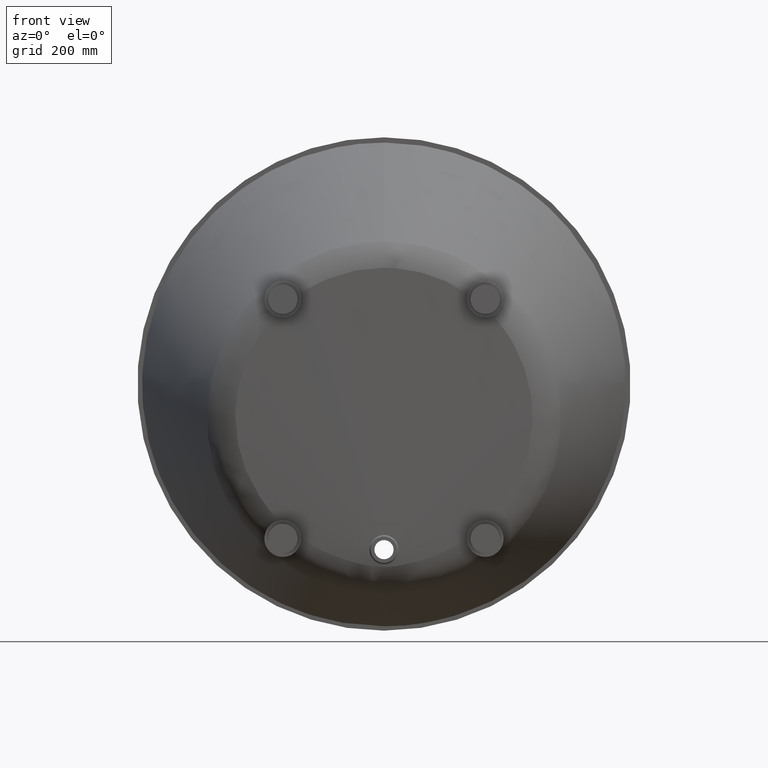
[diagram: clean part render]
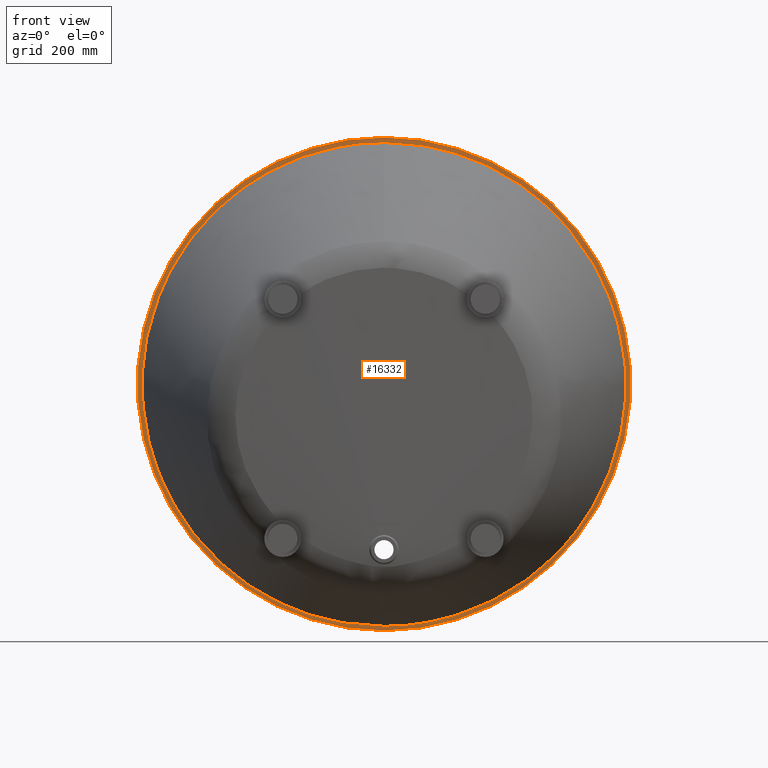
[diagram: same view with one face highlighted and labeled with its STEP entity id]
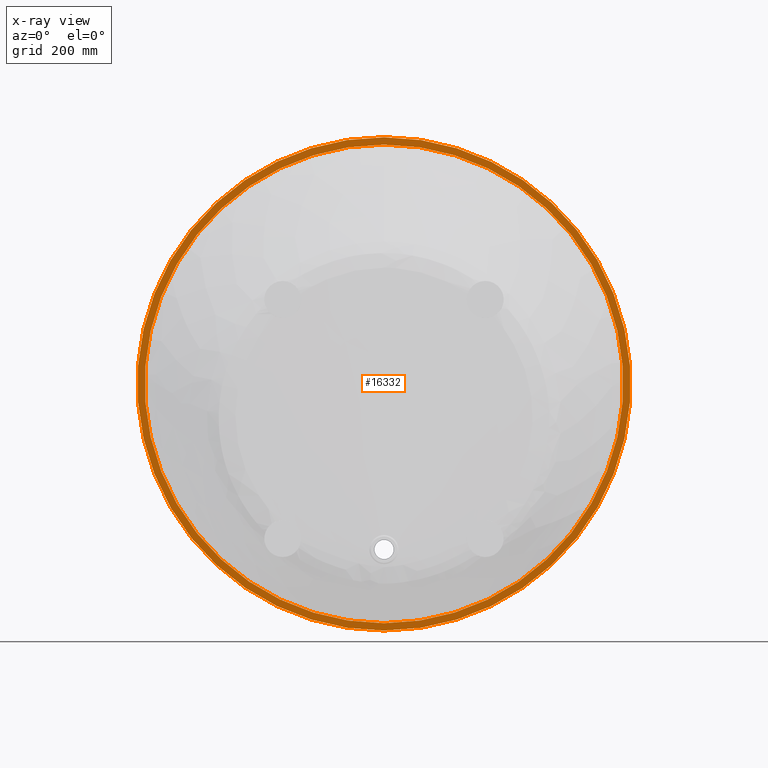
[diagram: x-ray of the same camera — body ghosted, the highlighted face saturated]
A machine part, front view. The second image highlights one B-rep face of the part: STEP entity #16332.
The next image is the same camera in x-ray: the body ghosted, the highlighted face saturated — about 0% of this face is hidden behind the body in this view.
In plain terms, the highlighted planar face has unit normal (0, 1, 0).
Its self-contained STEP definition (entity closure, byte-faithful):
#15 = DIRECTION ( 'NONE',  ( 0.0000000000000000000, 0.0000000000000000000, 1.000000000000000000 ) ) ;
#113 = DIRECTION ( 'NONE',  ( 0.0000000000000000000, -0.0000000000000000000, 1.000000000000000000 ) ) ;
#123 = CIRCLE ( 'NONE', #8256, 670.0000000000000000 ) ;
#745 = ORIENTED_EDGE ( 'NONE', *, *, #6682, .F. ) ;
#1046 = ORIENTED_EDGE ( 'NONE', *, *, #16213, .T. ) ;
#1057 = CIRCLE ( 'NONE', #5871, 670.0000000000000000 ) ;
#1396 = ORIENTED_EDGE ( 'NONE', *, *, #17487, .F. ) ;
#1532 = PLANE ( 'NONE',  #10375 ) ;
#2349 = CARTESIAN_POINT ( 'NONE',  ( 0.0000000000000000000, -10.00000000000000000, 0.0000000000000000000 ) ) ;
#2361 = VERTEX_POINT ( 'NONE', #15265 ) ;
#2876 = DIRECTION ( 'NONE',  ( 0.0000000000000000000, 0.0000000000000000000, 1.000000000000000000 ) ) ;
#5871 = AXIS2_PLACEMENT_3D ( 'NONE', #10045, #15781, #2876 ) ;
#6682 = EDGE_CURVE ( 'NONE', #18441, #8557, #1057, .T. ) ;
#6997 = CARTESIAN_POINT ( 'NONE',  ( 0.0000000000000000000, -10.00000000000000000, 0.0000000000000000000 ) ) ;
#7185 = CARTESIAN_POINT ( 'NONE',  ( 0.0000000000000000000, -10.00000000000000000, 0.0000000000000000000 ) ) ;
#7282 = CARTESIAN_POINT ( 'NONE',  ( 0.0000000000000000000, -10.00000000000000000, 0.0000000000000000000 ) ) ;
#7356 = CIRCLE ( 'NONE', #15463, 650.0000000000000000 ) ;
#7732 = EDGE_LOOP ( 'NONE', ( #1396, #745 ) ) ;
#8000 = VERTEX_POINT ( 'NONE', #10025 ) ;
#8096 = DIRECTION ( 'NONE',  ( 0.0000000000000000000, 1.000000000000000000, 0.0000000000000000000 ) ) ;
#8256 = AXIS2_PLACEMENT_3D ( 'NONE', #6997, #12745, #18482 ) ;
#8557 = VERTEX_POINT ( 'NONE', #12075 ) ;
#8695 = FACE_BOUND ( 'NONE', #11764, .T. ) ;
#9460 = CIRCLE ( 'NONE', #15168, 650.0000000000000000 ) ;
#10025 = CARTESIAN_POINT ( 'NONE',  ( 7.960204194457797252E-14, -10.00000000000000000, -650.0000000000000000 ) ) ;
#10045 = CARTESIAN_POINT ( 'NONE',  ( 0.0000000000000000000, -10.00000000000000000, 0.0000000000000000000 ) ) ;
#10375 = AXIS2_PLACEMENT_3D ( 'NONE', #7282, #13029, #113 ) ;
#11764 = EDGE_LOOP ( 'NONE', ( #16490, #1046 ) ) ;
#12075 = CARTESIAN_POINT ( 'NONE',  ( 0.0000000000000000000, -10.00000000000000000, 670.0000000000000000 ) ) ;
#12745 = DIRECTION ( 'NONE',  ( 0.0000000000000000000, 1.000000000000000000, 0.0000000000000000000 ) ) ;
#12933 = DIRECTION ( 'NONE',  ( 0.0000000000000000000, 1.000000000000000000, 0.0000000000000000000 ) ) ;
#13029 = DIRECTION ( 'NONE',  ( 0.0000000000000000000, 1.000000000000000000, 0.0000000000000000000 ) ) ;
#13778 = CARTESIAN_POINT ( 'NONE',  ( 8.205133554287266286E-14, -10.00000000000000000, -670.0000000000000000 ) ) ;
#13841 = DIRECTION ( 'NONE',  ( 0.0000000000000000000, 0.0000000000000000000, 1.000000000000000000 ) ) ;
#14432 = FACE_OUTER_BOUND ( 'NONE', #7732, .T. ) ;
#15168 = AXIS2_PLACEMENT_3D ( 'NONE', #7185, #12933, #15 ) ;
#15265 = CARTESIAN_POINT ( 'NONE',  ( 0.0000000000000000000, -10.00000000000000000, 650.0000000000000000 ) ) ;
#15463 = AXIS2_PLACEMENT_3D ( 'NONE', #2349, #8096, #13841 ) ;
#15781 = DIRECTION ( 'NONE',  ( 0.0000000000000000000, 1.000000000000000000, 0.0000000000000000000 ) ) ;
#16213 = EDGE_CURVE ( 'NONE', #8000, #2361, #9460, .T. ) ;
#16332 = ADVANCED_FACE ( 'NONE', ( #8695, #14432 ), #1532, .F. ) ;
#16490 = ORIENTED_EDGE ( 'NONE', *, *, #16951, .T. ) ;
#16951 = EDGE_CURVE ( 'NONE', #2361, #8000, #7356, .T. ) ;
#17487 = EDGE_CURVE ( 'NONE', #8557, #18441, #123, .T. ) ;
#18441 = VERTEX_POINT ( 'NONE', #13778 ) ;
#18482 = DIRECTION ( 'NONE',  ( 0.0000000000000000000, 0.0000000000000000000, 1.000000000000000000 ) ) ;